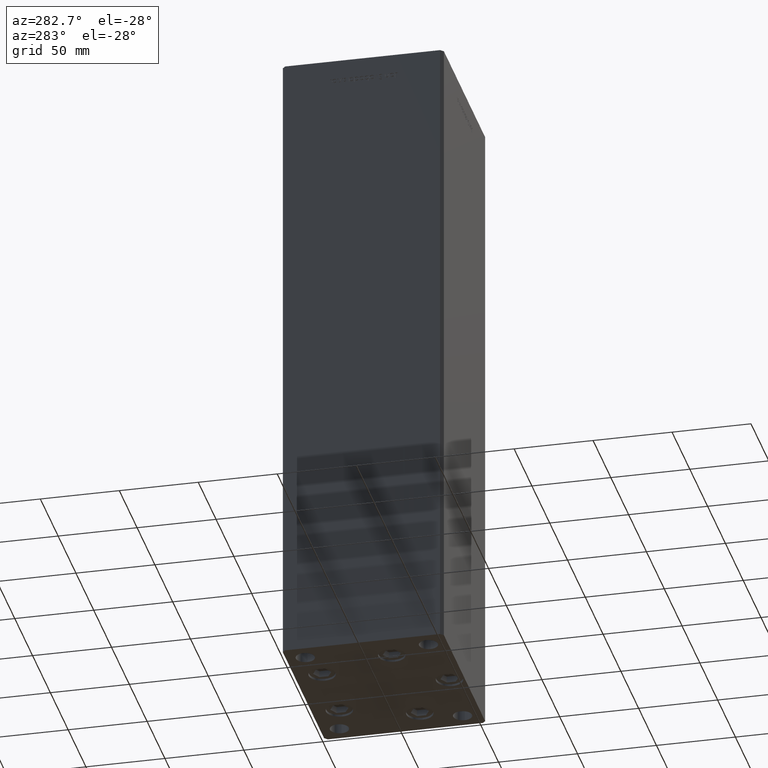
[diagram: clean part render]
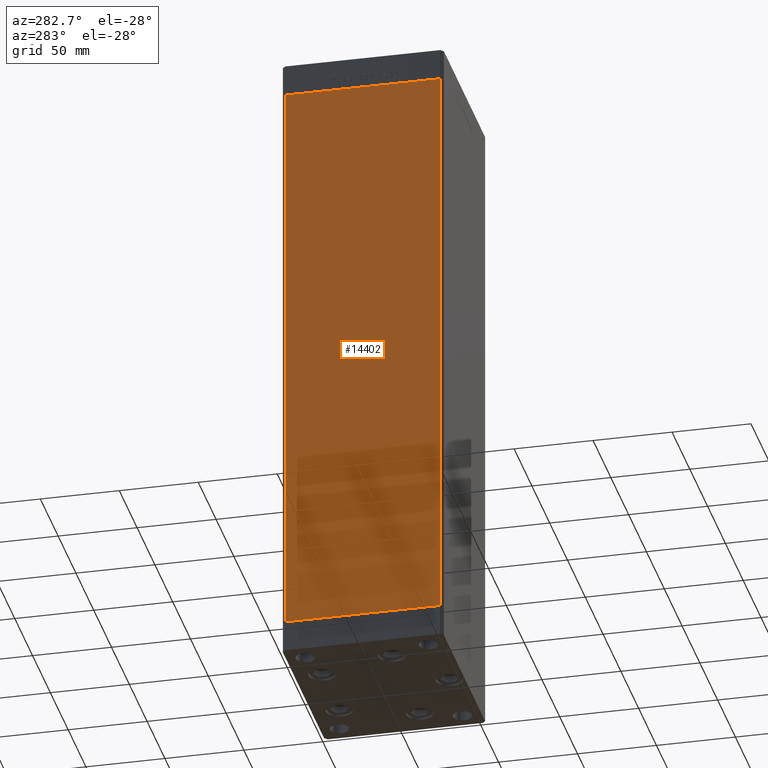
[diagram: same view with one face highlighted and labeled with its STEP entity id]
A machine part, auxiliary view. The second image highlights one B-rep face of the part: STEP entity #14402.
In plain terms, the highlighted planar face has unit normal (1, 0, 0).
Its self-contained STEP definition (entity closure, byte-faithful):
#315 = VECTOR ( 'NONE', #35221, 1000.000000000000000 ) ;
#796 = LINE ( 'NONE', #13609, #1254 ) ;
#1254 = VECTOR ( 'NONE', #8912, 1000.000000000000000 ) ;
#2099 = FACE_OUTER_BOUND ( 'NONE', #11706, .T. ) ;
#3984 = EDGE_CURVE ( 'NONE', #24790, #48124, #39153, .T. ) ;
#7042 = CARTESIAN_POINT ( 'NONE',  ( -59.99999999999998579, -49.00000000000000000, 0.000000000000000000 ) ) ;
#7757 = DIRECTION ( 'NONE',  ( 2.832201593431521726E-16, -1.000000000000000000, 0.000000000000000000 ) ) ;
#8022 = AXIS2_PLACEMENT_3D ( 'NONE', #50028, #14162, #30114 ) ;
#8912 = DIRECTION ( 'NONE',  ( -0.000000000000000000, -0.000000000000000000, -1.000000000000000000 ) ) ;
#11706 = EDGE_LOOP ( 'NONE', ( #35482, #46983, #44055, #13773 ) ) ;
#12798 = CARTESIAN_POINT ( 'NONE',  ( -60.00000000000001421, 49.00000000000000000, 0.000000000000000000 ) ) ;
#13609 = CARTESIAN_POINT ( 'NONE',  ( -59.99999999999998579, -49.00000000000000000, 368.5000000000000000 ) ) ;
#13773 = ORIENTED_EDGE ( 'NONE', *, *, #16110, .T. ) ;
#14162 = DIRECTION ( 'NONE',  ( 1.000000000000000000, 2.832201593431521726E-16, -0.000000000000000000 ) ) ;
#14402 = ADVANCED_FACE ( 'NONE', ( #2099 ), #34062, .F. ) ;
#14890 = CARTESIAN_POINT ( 'NONE',  ( -60.00000000000001421, 49.00000000000000000, 368.5000000000000000 ) ) ;
#15112 = CARTESIAN_POINT ( 'NONE',  ( -59.99999999999998579, -49.00000000000000000, 368.5000000000000000 ) ) ;
#16110 = EDGE_CURVE ( 'NONE', #24790, #33156, #42462, .T. ) ;
#20186 = VECTOR ( 'NONE', #7757, 1000.000000000000000 ) ;
#24790 = VERTEX_POINT ( 'NONE', #14890 ) ;
#27089 = CARTESIAN_POINT ( 'NONE',  ( -60.00000000000001421, 49.00000000000000000, 368.5000000000000000 ) ) ;
#27499 = VERTEX_POINT ( 'NONE', #7042 ) ;
#27660 = LINE ( 'NONE', #43624, #20186 ) ;
#27884 = EDGE_CURVE ( 'NONE', #33156, #27499, #27660, .T. ) ;
#30114 = DIRECTION ( 'NONE',  ( -2.832201593431521726E-16, 1.000000000000000000, 0.000000000000000000 ) ) ;
#33156 = VERTEX_POINT ( 'NONE', #12798 ) ;
#33581 = DIRECTION ( 'NONE',  ( -0.000000000000000000, -0.000000000000000000, -1.000000000000000000 ) ) ;
#34062 = PLANE ( 'NONE',  #8022 ) ;
#35221 = DIRECTION ( 'NONE',  ( 2.832201593431521726E-16, -1.000000000000000000, 0.000000000000000000 ) ) ;
#35482 = ORIENTED_EDGE ( 'NONE', *, *, #27884, .T. ) ;
#38017 = CARTESIAN_POINT ( 'NONE',  ( -60.00000000000001421, 49.00000000000000000, 368.5000000000000000 ) ) ;
#38178 = EDGE_CURVE ( 'NONE', #48124, #27499, #796, .T. ) ;
#39153 = LINE ( 'NONE', #27089, #315 ) ;
#39830 = VECTOR ( 'NONE', #33581, 1000.000000000000000 ) ;
#42462 = LINE ( 'NONE', #38017, #39830 ) ;
#43624 = CARTESIAN_POINT ( 'NONE',  ( -60.00000000000001421, 49.00000000000000000, 0.000000000000000000 ) ) ;
#44055 = ORIENTED_EDGE ( 'NONE', *, *, #3984, .F. ) ;
#46983 = ORIENTED_EDGE ( 'NONE', *, *, #38178, .F. ) ;
#48124 = VERTEX_POINT ( 'NONE', #15112 ) ;
#50028 = CARTESIAN_POINT ( 'NONE',  ( -60.00000000000001421, 49.00000000000000000, 368.5000000000000000 ) ) ;